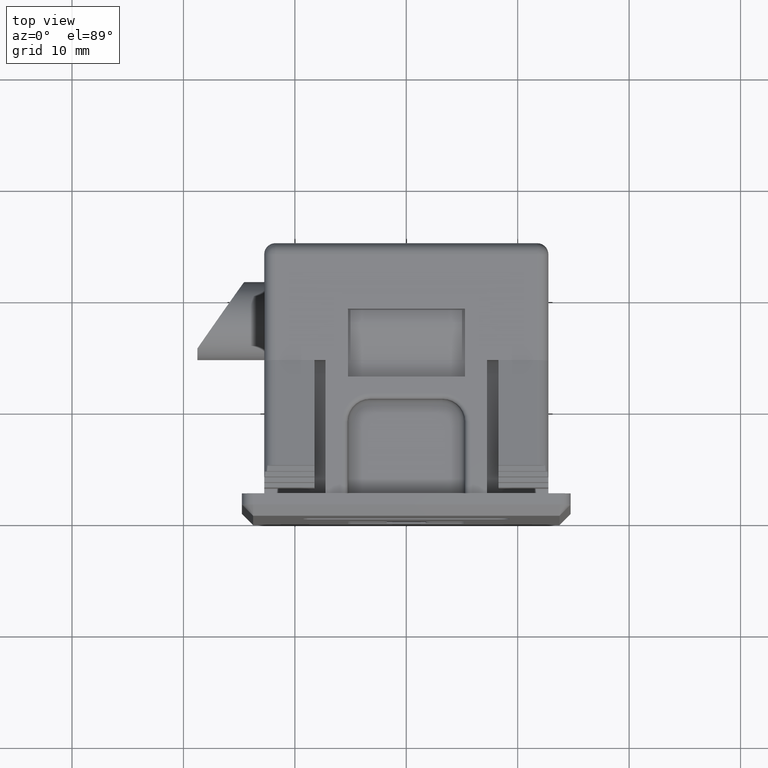
[diagram: clean part render]
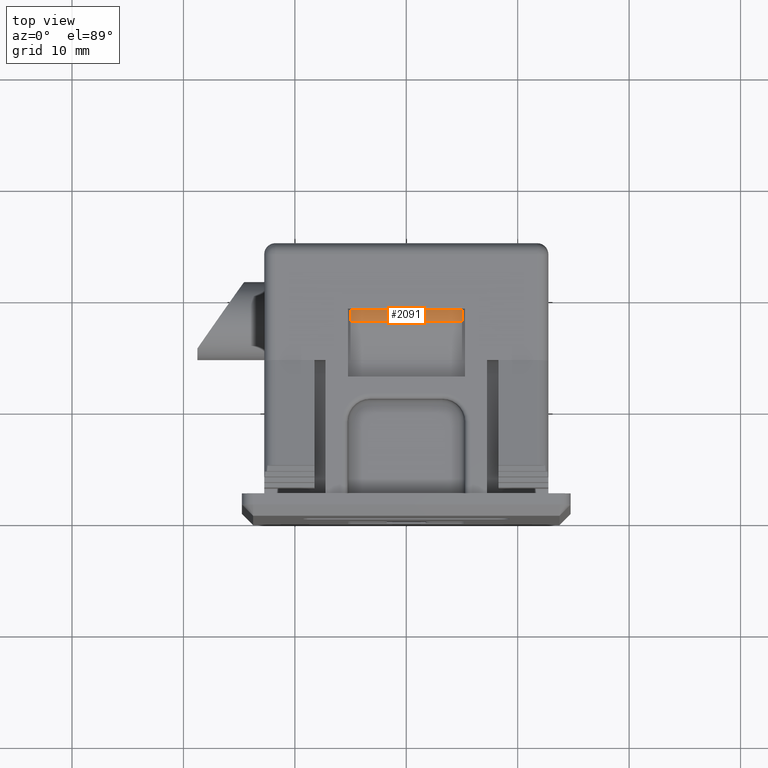
[diagram: same view with one face highlighted and labeled with its STEP entity id]
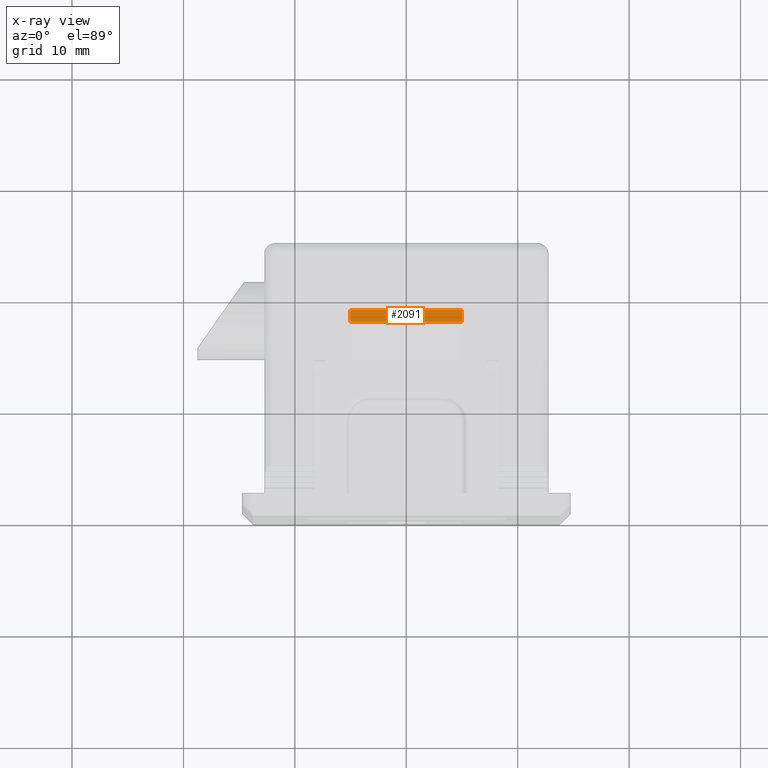
[diagram: x-ray of the same camera — body ghosted, the highlighted face saturated]
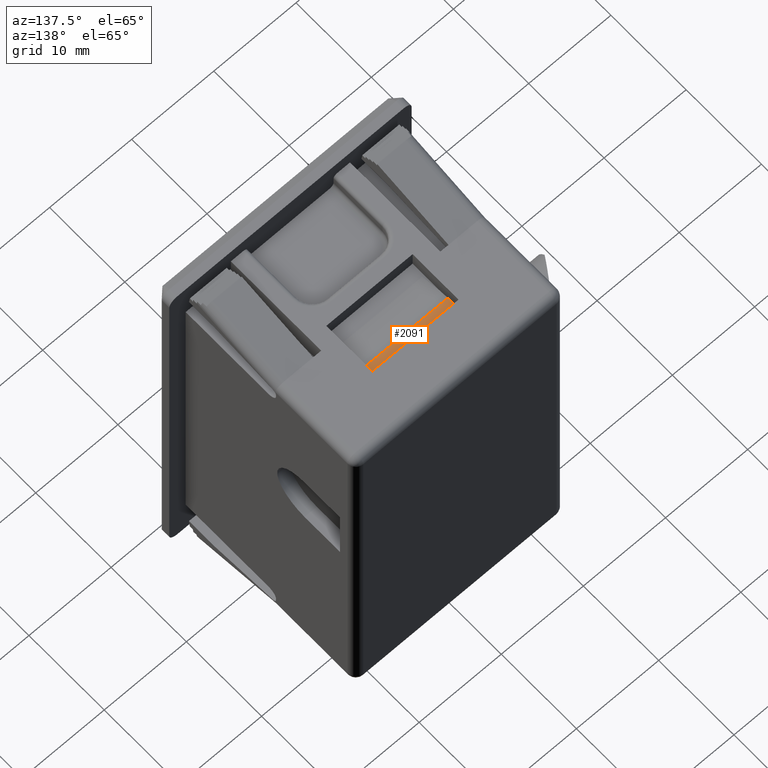
[diagram: same view with one face highlighted and labeled with its STEP entity id]
A machine part, top view. The second image highlights one B-rep face of the part: STEP entity #2091.
The next image is the same camera in x-ray: the body ghosted, the highlighted face saturated — about 0% of this face is hidden behind the body in this view.
A second angle (auxiliary view) of the same face is appended — the face is thin or edge-on in the first view.
In plain terms, the highlighted planar face has unit normal (0, -0, -1).
Its self-contained STEP definition (entity closure, byte-faithful):
#90 = EDGE_CURVE ( 'NONE', #145, #3840, #3523, .T. ) ;
#136 = CARTESIAN_POINT ( 'NONE',  ( -4.999999999999830400, 24.50000000000120100, 22.14999999997990100 ) ) ;
#145 = VERTEX_POINT ( 'NONE', #1785 ) ;
#573 = ORIENTED_EDGE ( 'NONE', *, *, #689, .T. ) ;
#689 = EDGE_CURVE ( 'NONE', #5558, #2151, #3073, .T. ) ;
#1069 = CARTESIAN_POINT ( 'NONE',  ( 4.999999999995449900, 18.49999999999940300, 22.14999999998100200 ) ) ;
#1106 = CARTESIAN_POINT ( 'NONE',  ( 995.0000000000000000, 18.49999999999930000, 22.14999999998100200 ) ) ;
#1156 = CARTESIAN_POINT ( 'NONE',  ( -4.999999999999779700, 18.49999999999940300, 22.14999999998100200 ) ) ;
#1330 = VECTOR ( 'NONE', #2375, 1000.000000000000000 ) ;
#1429 = VECTOR ( 'NONE', #1884, 1000.000000000000000 ) ;
#1508 = ORIENTED_EDGE ( 'NONE', *, *, #4002, .F. ) ;
#1671 = CARTESIAN_POINT ( 'NONE',  ( -4.999999999999779700, 17.44456378973919900, 22.14999999998120100 ) ) ;
#1785 = CARTESIAN_POINT ( 'NONE',  ( 4.999999999995449900, 17.44456378973919900, 22.14999999998120100 ) ) ;
#1884 = DIRECTION ( 'NONE',  ( -1.000000000000000000, 0.0000000000000000000, 0.0000000000000000000 ) ) ;
#2038 = ORIENTED_EDGE ( 'NONE', *, *, #6285, .T. ) ;
#2091 = ADVANCED_FACE ( 'NONE', ( #2425 ), #2138, .F. ) ;
#2138 = PLANE ( 'NONE',  #6088 ) ;
#2151 = VERTEX_POINT ( 'NONE', #1156 ) ;
#2180 = VECTOR ( 'NONE', #3513, 1000.000000000000000 ) ;
#2297 = CARTESIAN_POINT ( 'NONE',  ( 995.0000000000000000, 17.44456378973919900, 22.14999999998120100 ) ) ;
#2375 = DIRECTION ( 'NONE',  ( 0.0000000000000000000, -1.000000000000000000, 1.873713203497359900E-013 ) ) ;
#2425 = FACE_OUTER_BOUND ( 'NONE', #4307, .T. ) ;
#2588 = VECTOR ( 'NONE', #5208, 1000.000000000000000 ) ;
#2632 = DIRECTION ( 'NONE',  ( 0.0000000000000000000, -1.873713203497359900E-013, -1.000000000000000000 ) ) ;
#3073 = LINE ( 'NONE', #3403, #1429 ) ;
#3403 = CARTESIAN_POINT ( 'NONE',  ( 995.0000000000000000, 18.49999999999940300, 22.14999999998100200 ) ) ;
#3513 = DIRECTION ( 'NONE',  ( -1.000000000000000000, 0.0000000000000000000, 0.0000000000000000000 ) ) ;
#3523 = LINE ( 'NONE', #2297, #2180 ) ;
#3840 = VERTEX_POINT ( 'NONE', #1671 ) ;
#4002 = EDGE_CURVE ( 'NONE', #5558, #145, #5216, .T. ) ;
#4307 = EDGE_LOOP ( 'NONE', ( #2038, #5843, #1508, #573 ) ) ;
#5208 = DIRECTION ( 'NONE',  ( 0.0000000000000000000, -1.000000000000000000, 1.873713203497359900E-013 ) ) ;
#5216 = LINE ( 'NONE', #5433, #1330 ) ;
#5433 = CARTESIAN_POINT ( 'NONE',  ( 4.999999999995449900, 24.50000000000120100, 22.14999999997990100 ) ) ;
#5558 = VERTEX_POINT ( 'NONE', #1069 ) ;
#5843 = ORIENTED_EDGE ( 'NONE', *, *, #90, .F. ) ;
#6088 = AXIS2_PLACEMENT_3D ( 'NONE', #1106, #2632, #6175 ) ;
#6175 = DIRECTION ( 'NONE',  ( 0.0000000000000000000, 1.000000000000000000, -1.873713203497359900E-013 ) ) ;
#6285 = EDGE_CURVE ( 'NONE', #2151, #3840, #6318, .T. ) ;
#6318 = LINE ( 'NONE', #136, #2588 ) ;